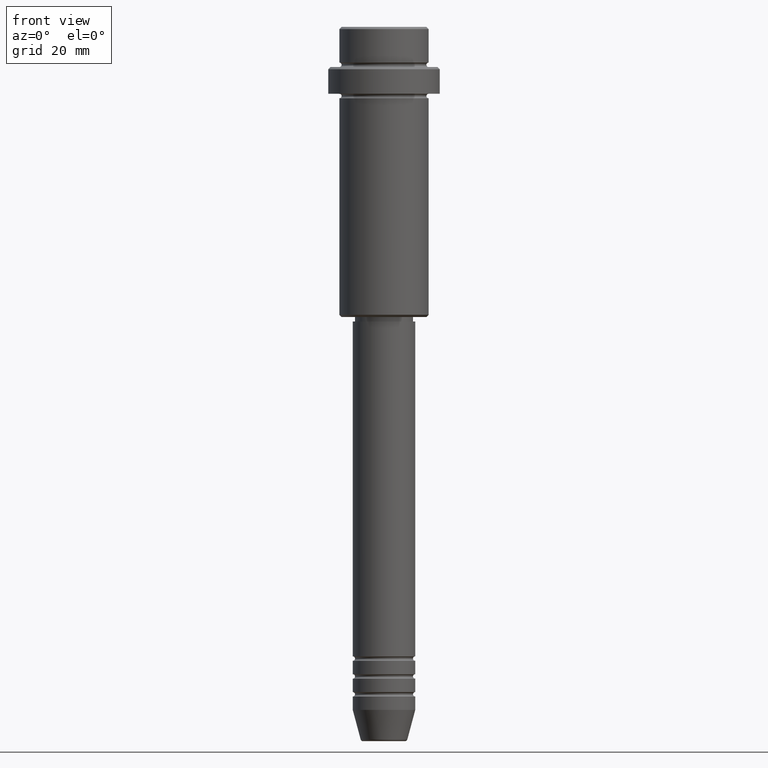
[diagram: clean part render]
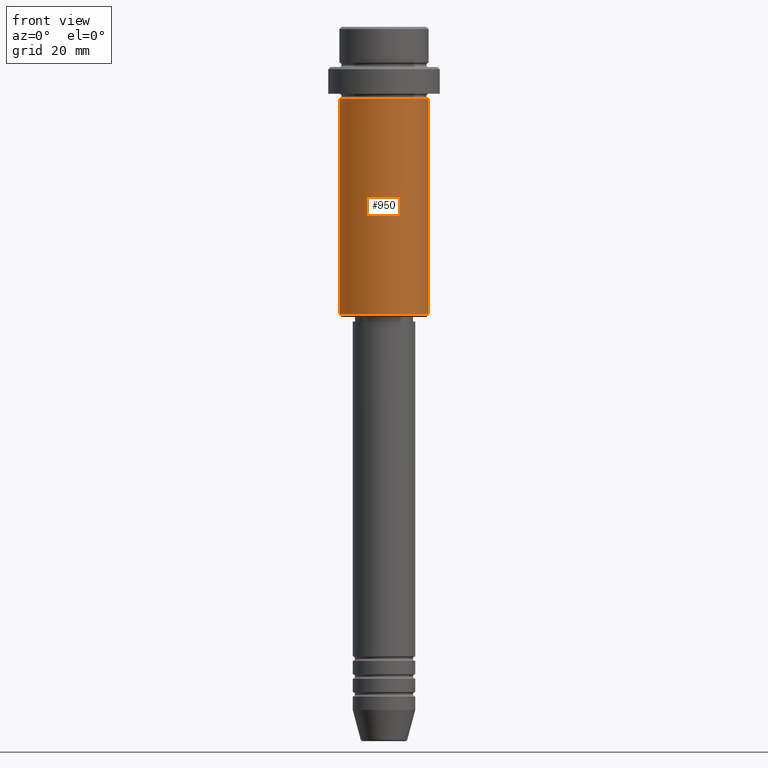
[diagram: same view with one face highlighted and labeled with its STEP entity id]
A machine part, front view. The second image highlights one B-rep face of the part: STEP entity #950.
In plain terms, the highlighted cylindrical surface (partial cylindrical patch) has radius 10 mm, axis along (-0, -0, 1).
Its self-contained STEP definition (entity closure, byte-faithful):
#9 = DIRECTION ( 'NONE',  ( -1.000000000000000000, 0.000000000000000000, 0.000000000000000000 ) ) ;
#49 = ORIENTED_EDGE ( 'NONE', *, *, #181, .F. ) ;
#62 = CARTESIAN_POINT ( 'NONE',  ( 9.999999999999998224, 0.000000000000000000, -16.00000000000000000 ) ) ;
#135 = DIRECTION ( 'NONE',  ( -0.000000000000000000, -0.000000000000000000, 1.000000000000000000 ) ) ;
#164 = CARTESIAN_POINT ( 'NONE',  ( 0.000000000000000000, 0.000000000000000000, 0.000000000000000000 ) ) ;
#181 = EDGE_CURVE ( 'NONE', #377, #1325, #837, .T. ) ;
#209 = EDGE_CURVE ( 'NONE', #1325, #1016, #252, .T. ) ;
#245 = LINE ( 'NONE', #578, #1398 ) ;
#252 = CIRCLE ( 'NONE', #1327, 9.999999999999998224 ) ;
#288 = ORIENTED_EDGE ( 'NONE', *, *, #770, .T. ) ;
#298 = CIRCLE ( 'NONE', #757, 9.999999999999998224 ) ;
#375 = DIRECTION ( 'NONE',  ( -0.000000000000000000, -0.000000000000000000, 1.000000000000000000 ) ) ;
#377 = VERTEX_POINT ( 'NONE', #889 ) ;
#549 = CARTESIAN_POINT ( 'NONE',  ( 0.000000000000000000, 0.000000000000000000, -64.50000000000000000 ) ) ;
#578 = CARTESIAN_POINT ( 'NONE',  ( 9.999999999999998224, 0.000000000000000000, 0.000000000000000000 ) ) ;
#703 = ORIENTED_EDGE ( 'NONE', *, *, #209, .F. ) ;
#734 = AXIS2_PLACEMENT_3D ( 'NONE', #164, #135, #908 ) ;
#754 = DIRECTION ( 'NONE',  ( -0.000000000000000000, -0.000000000000000000, 1.000000000000000000 ) ) ;
#757 = AXIS2_PLACEMENT_3D ( 'NONE', #549, #1319, #9 ) ;
#770 = EDGE_CURVE ( 'NONE', #377, #1318, #298, .T. ) ;
#823 = EDGE_CURVE ( 'NONE', #1318, #1016, #245, .T. ) ;
#837 = LINE ( 'NONE', #1271, #1349 ) ;
#889 = CARTESIAN_POINT ( 'NONE',  ( -9.999999999999998224, 1.224646799147353059E-15, -64.50000000000000000 ) ) ;
#908 = DIRECTION ( 'NONE',  ( 1.000000000000000000, 0.000000000000000000, 0.000000000000000000 ) ) ;
#918 = CARTESIAN_POINT ( 'NONE',  ( 9.999999999999998224, 0.000000000000000000, -64.50000000000000000 ) ) ;
#950 = ADVANCED_FACE ( 'NONE', ( #1151 ), #1017, .T. ) ;
#967 = CARTESIAN_POINT ( 'NONE',  ( 0.000000000000000000, 0.000000000000000000, -16.00000000000000000 ) ) ;
#1016 = VERTEX_POINT ( 'NONE', #62 ) ;
#1017 = CYLINDRICAL_SURFACE ( 'NONE', #734, 9.999999999999998224 ) ;
#1045 = DIRECTION ( 'NONE',  ( -0.000000000000000000, -0.000000000000000000, 1.000000000000000000 ) ) ;
#1085 = DIRECTION ( 'NONE',  ( 1.000000000000000000, 0.000000000000000000, 0.000000000000000000 ) ) ;
#1133 = EDGE_LOOP ( 'NONE', ( #49, #288, #1403, #703 ) ) ;
#1151 = FACE_OUTER_BOUND ( 'NONE', #1133, .T. ) ;
#1271 = CARTESIAN_POINT ( 'NONE',  ( -9.999999999999998224, 1.224646799147353059E-15, 0.000000000000000000 ) ) ;
#1318 = VERTEX_POINT ( 'NONE', #918 ) ;
#1319 = DIRECTION ( 'NONE',  ( -0.000000000000000000, -0.000000000000000000, 1.000000000000000000 ) ) ;
#1325 = VERTEX_POINT ( 'NONE', #1337 ) ;
#1327 = AXIS2_PLACEMENT_3D ( 'NONE', #967, #754, #1085 ) ;
#1337 = CARTESIAN_POINT ( 'NONE',  ( -9.999999999999998224, 1.224646799147353059E-15, -16.00000000000000000 ) ) ;
#1349 = VECTOR ( 'NONE', #375, 1000.000000000000000 ) ;
#1398 = VECTOR ( 'NONE', #1045, 1000.000000000000000 ) ;
#1403 = ORIENTED_EDGE ( 'NONE', *, *, #823, .T. ) ;